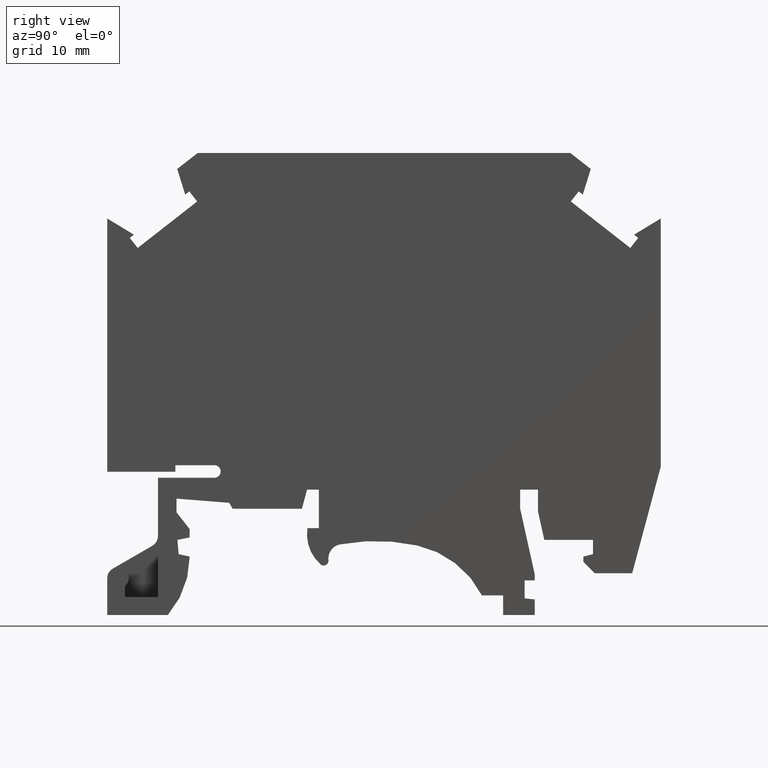
[diagram: clean part render]
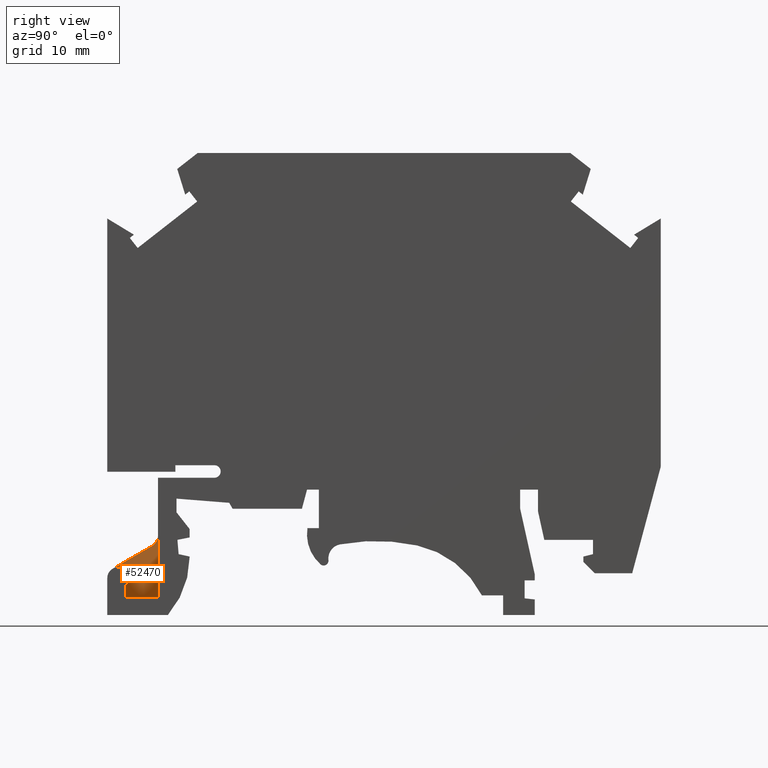
[diagram: same view with one face highlighted and labeled with its STEP entity id]
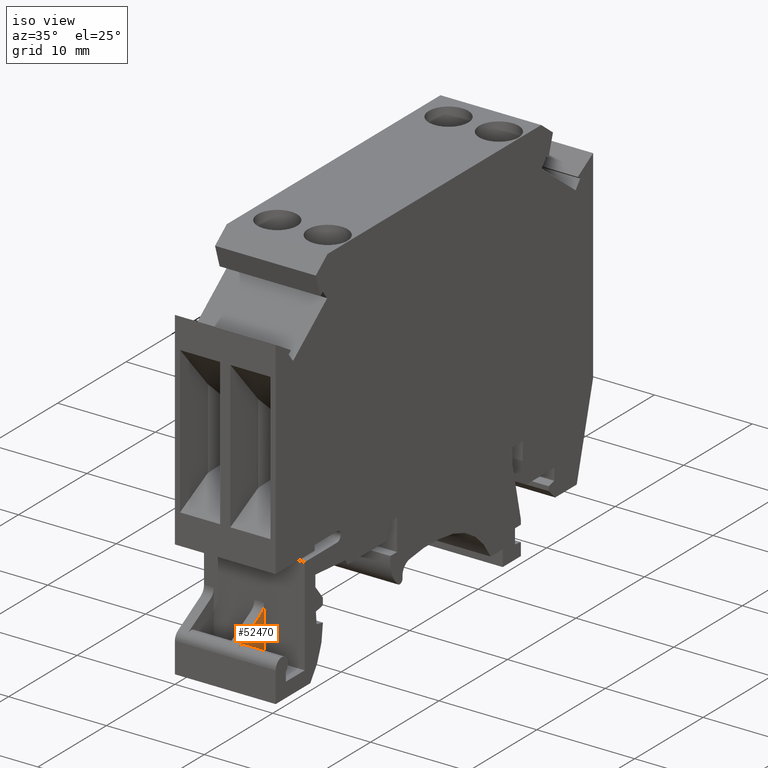
[diagram: same view with one face highlighted and labeled with its STEP entity id]
A machine part, right view. The second image highlights one B-rep face of the part: STEP entity #52470.
A second angle (iso view) of the same face is appended — the face is thin or edge-on in the first view.
In plain terms, the highlighted planar face has unit normal (1, -0, 0).
Its self-contained STEP definition (entity closure, byte-faithful):
#11620=CARTESIAN_POINT('',(-43.3520985338077,6.65870335830834,6.15));
#11630=VERTEX_POINT('',#11620);
#11660=CARTESIAN_POINT('',(-43.3520985338077,7.84913899382894,6.15));
#11670=DIRECTION('',(0.,1.,0.));
#11680=VECTOR('',#11670,1.);
#11690=LINE('',#11660,#11680);
#11700=CARTESIAN_POINT('',(-43.3520985338077,5.72952375155828,6.15));
#11710=VERTEX_POINT('',#11700);
#11720=EDGE_CURVE('',#11710,#11630,#11690,.T.);
#12270=CARTESIAN_POINT('',(-44.4020985338077,8.10894661496427,6.15));
#12280=VERTEX_POINT('',#12270);
#12310=CARTESIAN_POINT('',(-43.9520985338077,7.32952375155828,6.15));
#12320=DIRECTION('',(0.,0.,1.));
#12330=DIRECTION('',(1.,0.,0.));
#12340=AXIS2_PLACEMENT_3D('',#12310,#12320,#12330);
#12350=CIRCLE('',#12340,0.9);
#12360=EDGE_CURVE('',#11630,#12280,#12350,.T.);
#52070=CARTESIAN_POINT('',(-40.7588825338077,6.46751675155828,6.15));
#52080=DIRECTION('',(0.,0.,1.));
#52090=DIRECTION('',(1.,0.,0.));
#52100=AXIS2_PLACEMENT_3D('',#52070,#52080,#52090);
#52110=PLANE('',#52100);
#52120=CARTESIAN_POINT('',(-40.6020985338077,8.88178419700125E-16,6.15))
;
#52130=DIRECTION('',(0.,-1.,0.));
#52140=VECTOR('',#52130,1.);
#52150=LINE('',#52120,#52140);
#52160=CARTESIAN_POINT('',(-40.6020985338077,10.8802279070745,6.15));
#52170=VERTEX_POINT('',#52160);
#52180=CARTESIAN_POINT('',(-40.6020985338077,5.72952375155827,6.15));
#52190=VERTEX_POINT('',#52180);
#52200=EDGE_CURVE('',#52170,#52190,#52150,.T.);
#52210=ORIENTED_EDGE('',*,*,#52200,.F.);
#52220=CARTESIAN_POINT('',(-43.8520985338077,5.72952375155828,6.15));
#52230=DIRECTION('',(1.,-1.54684216171898E-15,0.));
#52240=VECTOR('',#52230,1.);
#52250=LINE('',#52220,#52240);
#52260=EDGE_CURVE('',#11710,#52190,#52250,.T.);
#52270=ORIENTED_EDGE('',*,*,#52260,.T.);
#52280=ORIENTED_EDGE('',*,*,#11720,.F.);
#52290=ORIENTED_EDGE('',*,*,#12360,.F.);
#52300=CARTESIAN_POINT('',(-56.8069065338077,0.947027376918647,6.15));
#52310=DIRECTION('',(0.866025403784439,0.5,0.));
#52320=VECTOR('',#52310,1.);
#52330=LINE('',#52300,#52320);
#52340=CARTESIAN_POINT('',(-41.1020985338077,10.01420250329,6.15));
#52350=VERTEX_POINT('',#52340);
#52360=EDGE_CURVE('',#12280,#52350,#52330,.T.);
#52370=ORIENTED_EDGE('',*,*,#52360,.F.);
#52380=CARTESIAN_POINT('',(-41.6020985338077,10.8802279070745,6.15));
#52390=DIRECTION('',(0.,0.,1.));
#52400=DIRECTION('',(-1.,0.,0.));
#52410=AXIS2_PLACEMENT_3D('',#52380,#52390,#52400);
#52420=CIRCLE('',#52410,1.);
#52430=EDGE_CURVE('',#52350,#52170,#52420,.T.);
#52440=ORIENTED_EDGE('',*,*,#52430,.F.);
#52450=EDGE_LOOP('',(#52440,#52370,#52290,#52280,#52270,#52210));
#52460=FACE_OUTER_BOUND('',#52450,.T.);
#52470=ADVANCED_FACE('',(#52460),#52110,.T.);